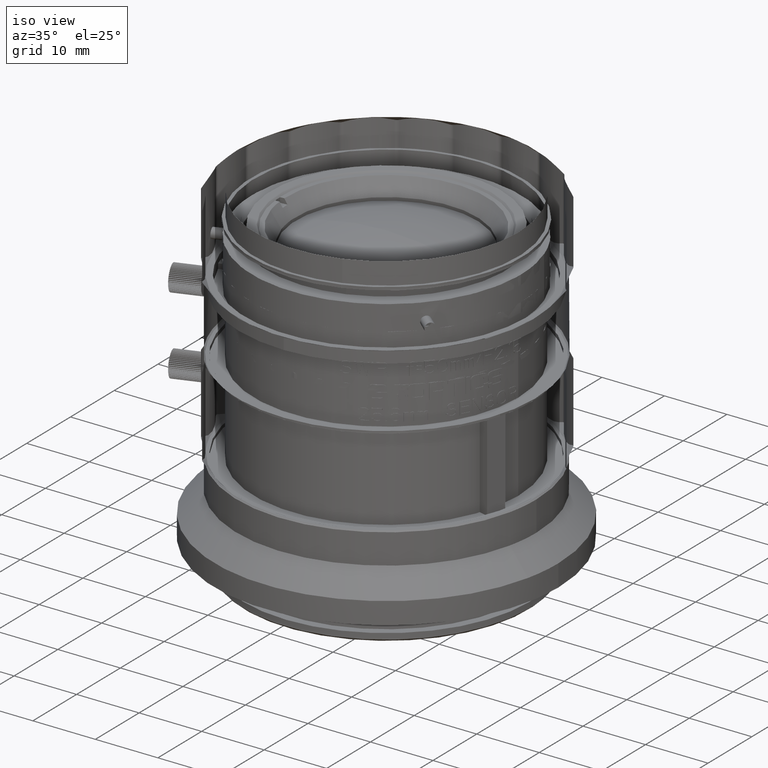
[diagram: clean part render]
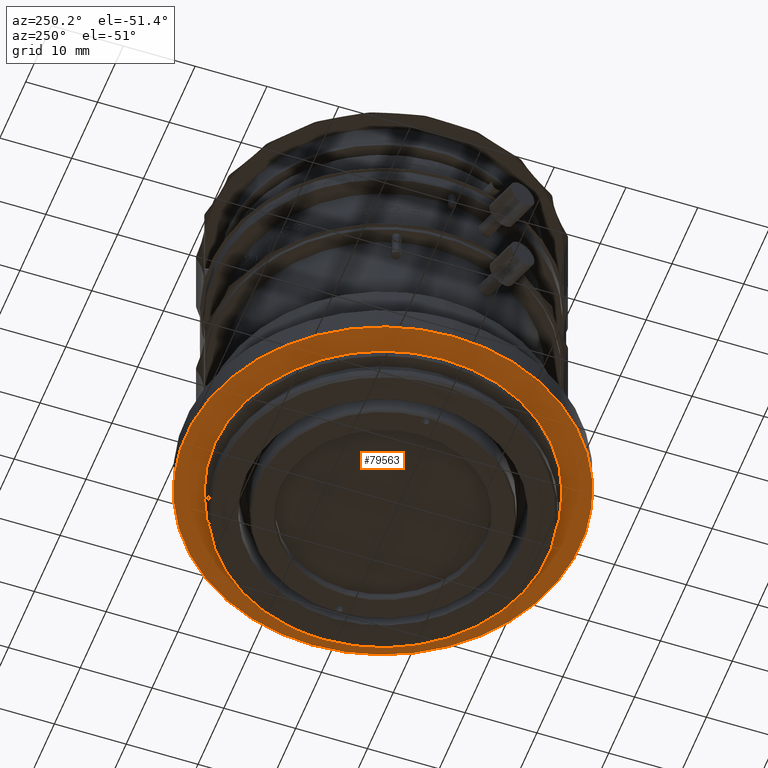
[diagram: tour spotlight — one face highlighted and labeled with its STEP entity id]
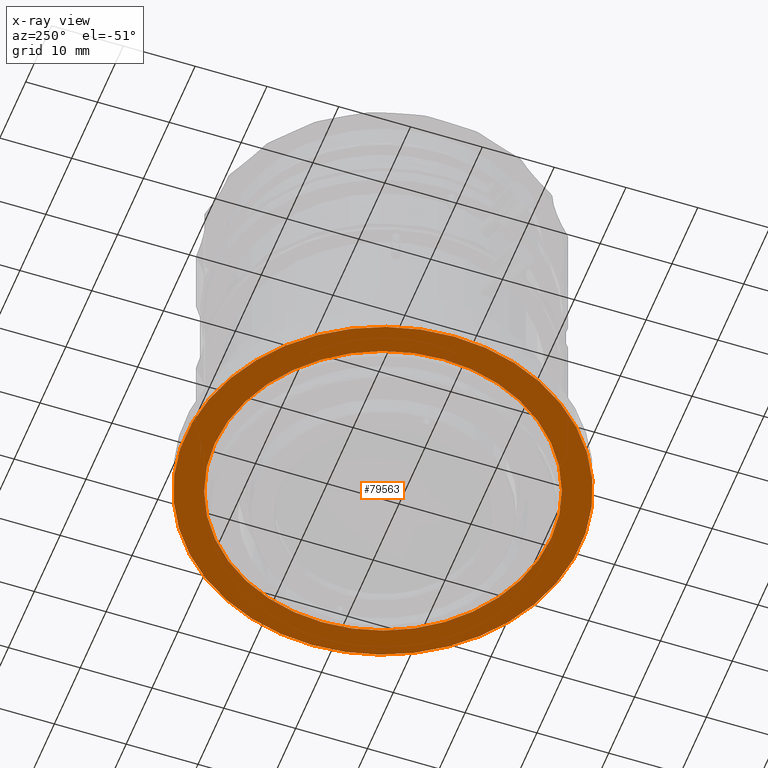
[diagram: x-ray of the same camera — body ghosted, this tour face saturated]
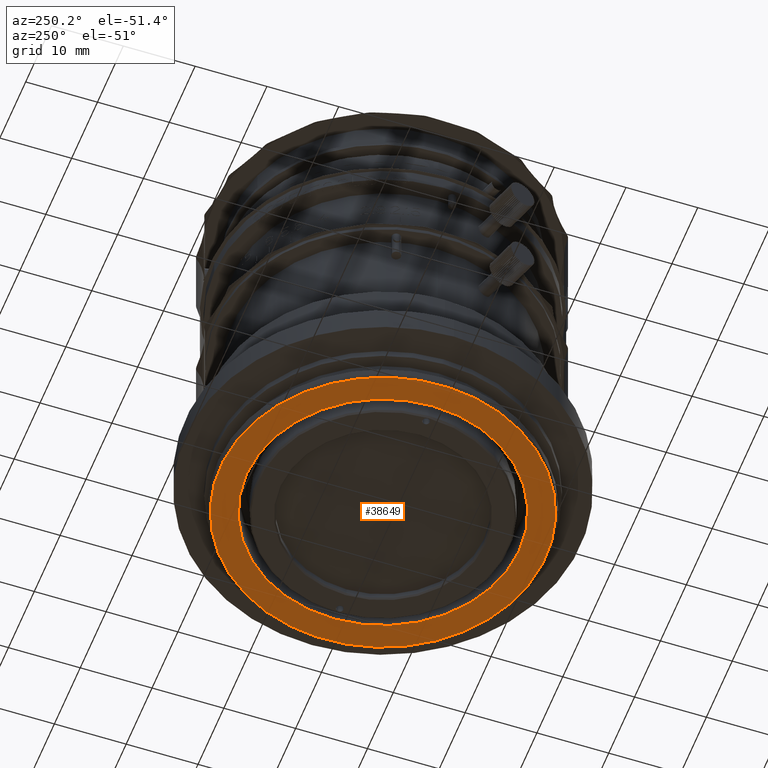
[diagram: tour spotlight — one face highlighted and labeled with its STEP entity id]
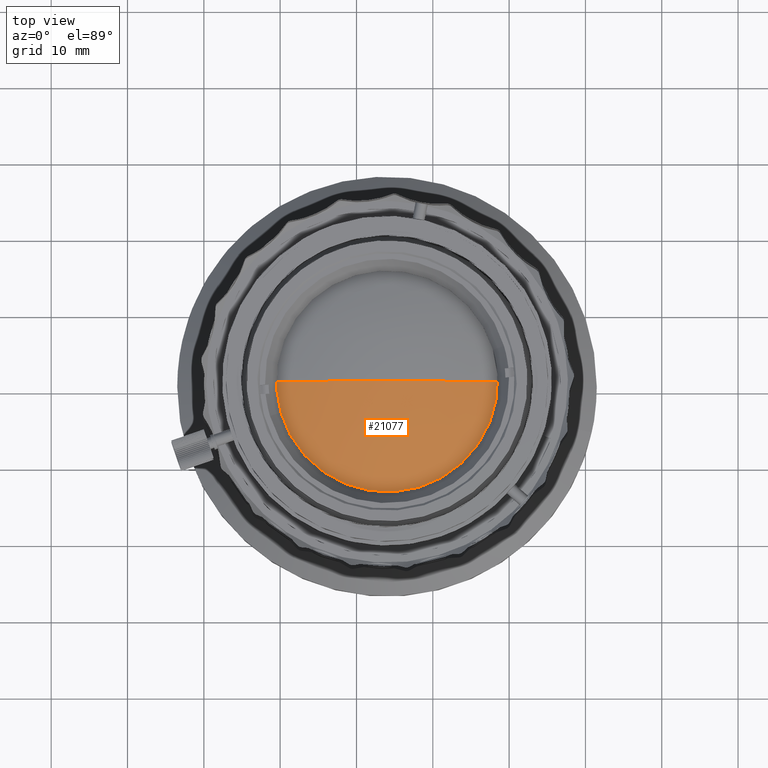
[diagram: tour spotlight — one face highlighted and labeled with its STEP entity id]
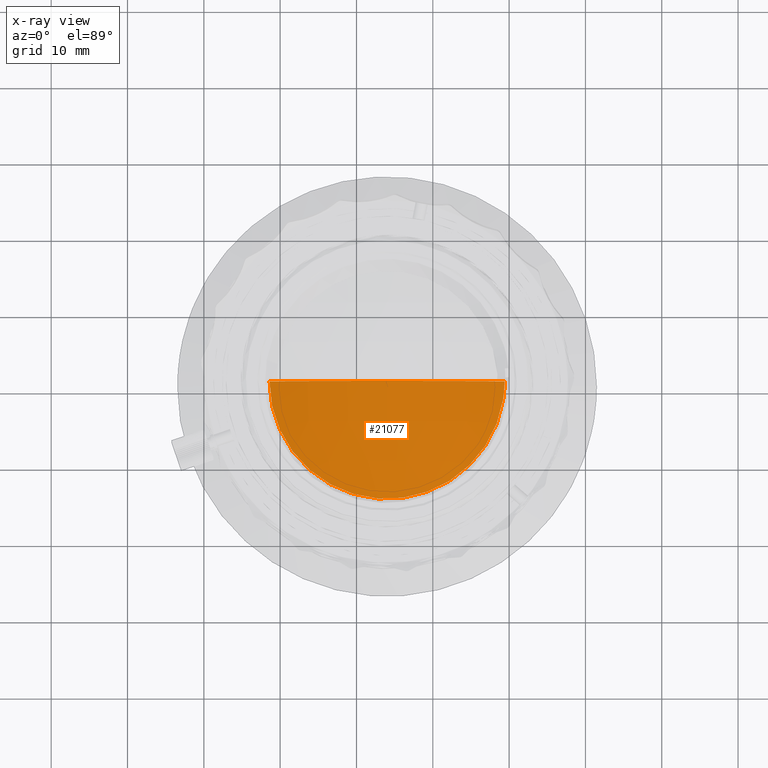
[diagram: x-ray of the same camera — body ghosted, this tour face saturated]
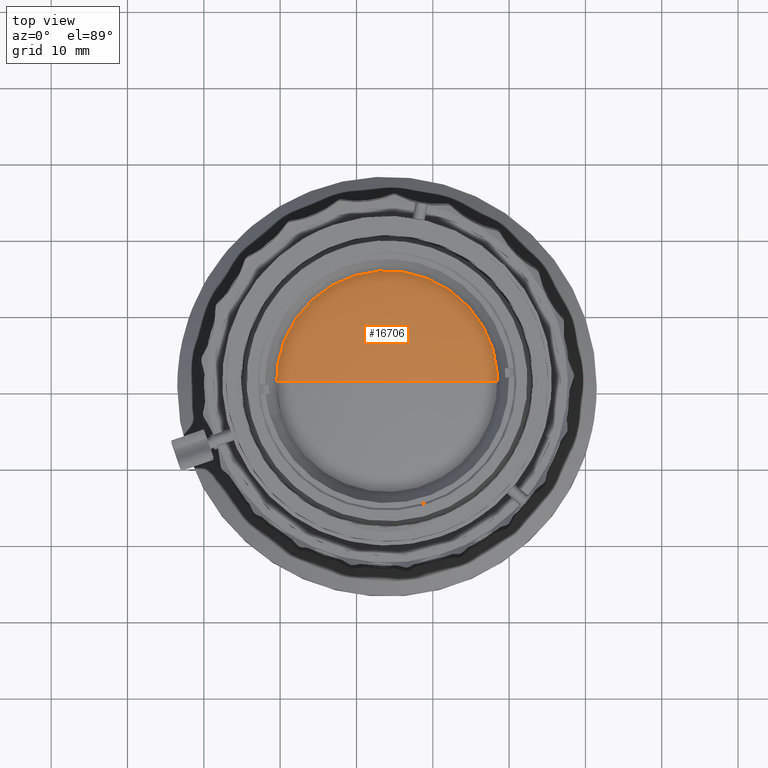
[diagram: tour spotlight — one face highlighted and labeled with its STEP entity id]
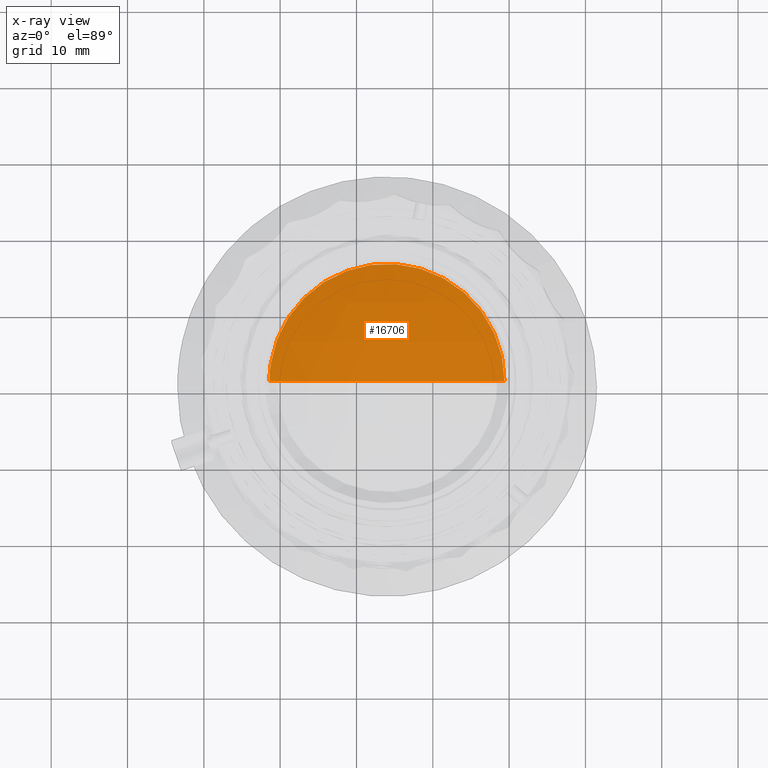
[diagram: x-ray of the same camera — body ghosted, this tour face saturated]
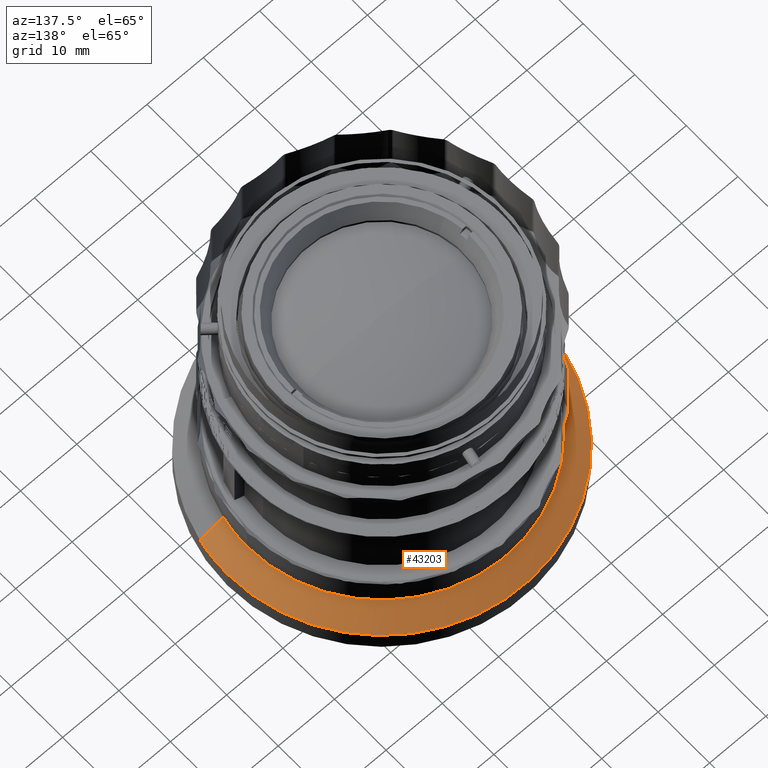
[diagram: tour spotlight — one face highlighted and labeled with its STEP entity id]
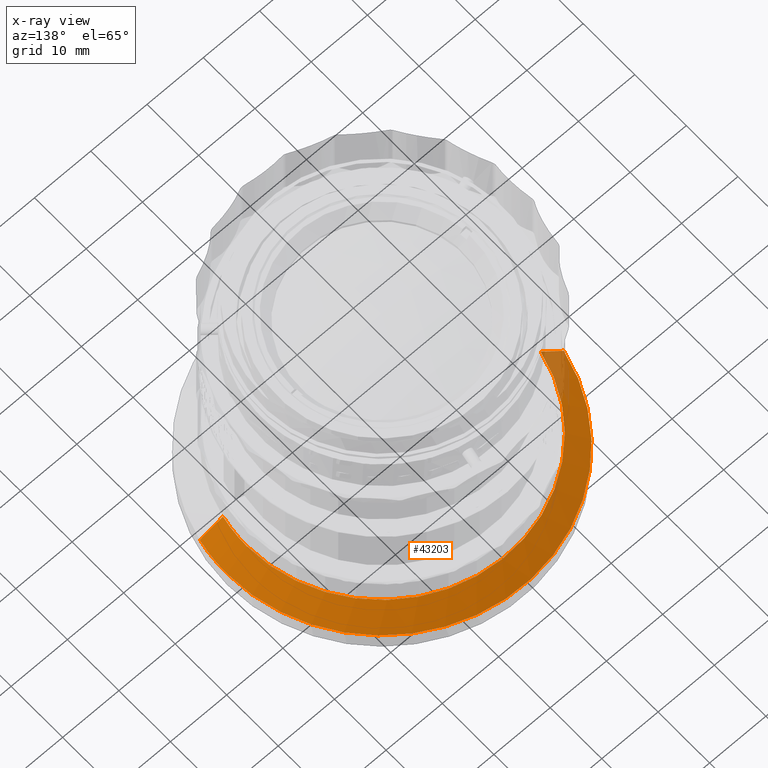
[diagram: x-ray of the same camera — body ghosted, this tour face saturated]
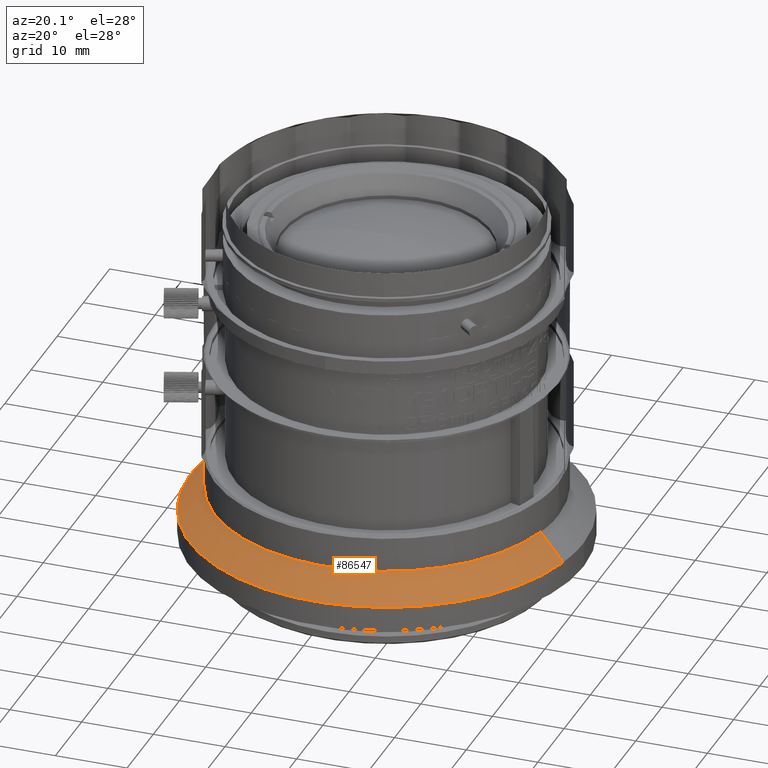
[diagram: tour spotlight — one face highlighted and labeled with its STEP entity id]
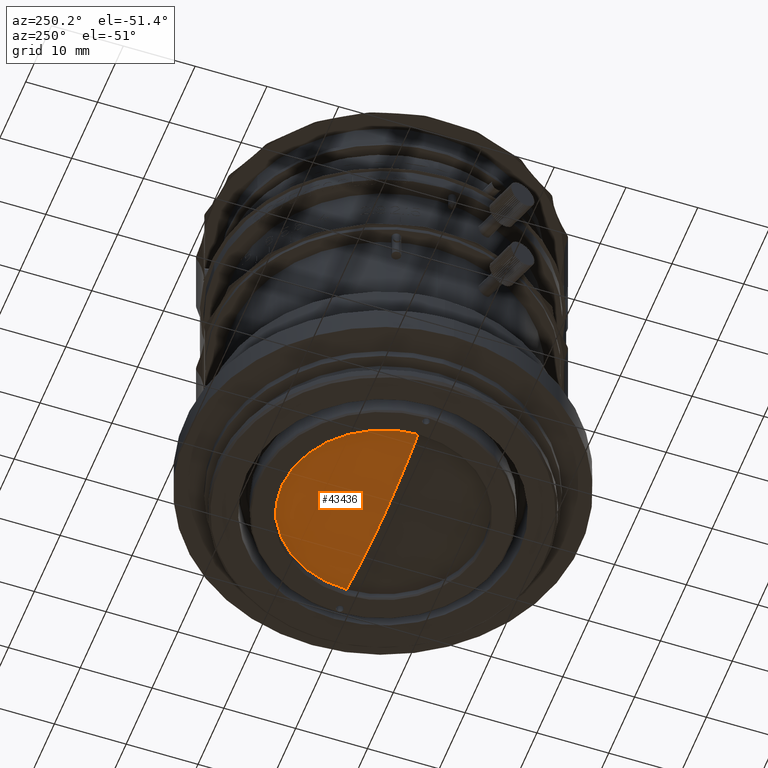
[diagram: tour spotlight — one face highlighted and labeled with its STEP entity id]
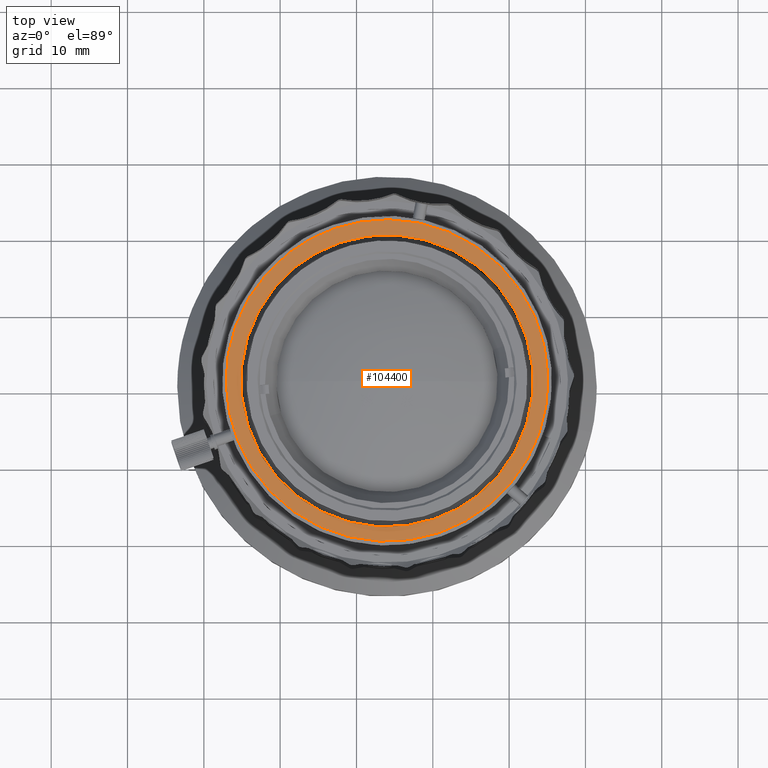
[diagram: tour spotlight — one face highlighted and labeled with its STEP entity id]
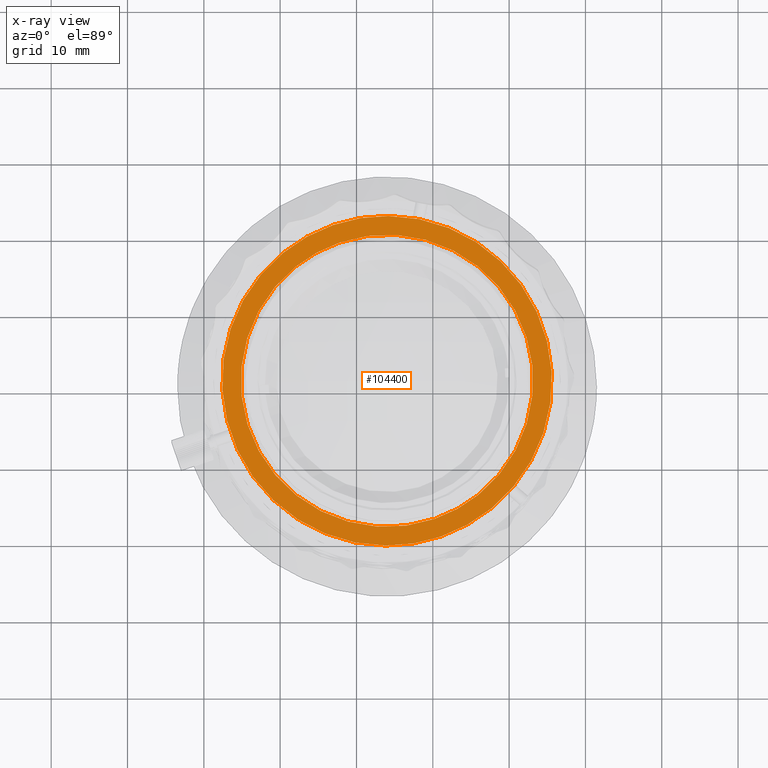
[diagram: x-ray of the same camera — body ghosted, this tour face saturated]
A machine part: a face-by-face anatomy tour. The part has 2630 B-rep faces; the first image is the clean iso view, then the 8 largest visible faces are spotlighted one at a time (largest first), each with its STEP entity span.

Face 1 — auxiliary view, entity #79563. An x-ray twin of the same camera follows (body ghosted, this face saturated) — the face is partly hidden behind the body. In plain terms, the highlighted planar face has unit normal (0, 0, 1).
Definition (entity closure, byte-faithful):
#5520 = DIRECTION ( 'NONE',  ( -1.000000000000000000, -5.803089394875964387E-14, 0.000000000000000000 ) ) ;
#7013 = DIRECTION ( 'NONE',  ( 1.000000000000000000, 2.201365456643623660E-13, 0.000000000000000000 ) ) ;
#11894 = CARTESIAN_POINT ( 'NONE',  ( 51.48619255813999729, 150.7964473440000006, -37.75599999999909784 ) ) ;
#13514 = DIRECTION ( 'NONE',  ( -4.475316629661279960E-28, 7.769033965384319644E-15, -1.000000000000000000 ) ) ;
#13991 = AXIS2_PLACEMENT_3D ( 'NONE', #53148, #70713, #52619 ) ;
#14342 = ORIENTED_EDGE ( 'NONE', *, *, #19328, .F. ) ;
#14514 = VERTEX_POINT ( 'NONE', #102521 ) ;
#15008 = CARTESIAN_POINT ( 'NONE',  ( 23.99999999549069685, 150.7964473439980111, -37.75599999999909784 ) ) ;
#17265 = VERTEX_POINT ( 'NONE', #61457 ) ;
#19328 = EDGE_CURVE ( 'NONE', #17265, #42813, #57764, .T. ) ;
#22472 = ORIENTED_EDGE ( 'NONE', *, *, #38018, .F. ) ;
#23138 = EDGE_LOOP ( 'NONE', ( #22472, #14342 ) ) ;
#24577 = DIRECTION ( 'NONE',  ( -1.851522468867120022E-27, 8.401541559299790651E-15, 1.000000000000000000 ) ) ;
#28995 = ORIENTED_EDGE ( 'NONE', *, *, #48640, .F. ) ;
#36128 = AXIS2_PLACEMENT_3D ( 'NONE', #15008, #24577, #7013 ) ;
#38018 = EDGE_CURVE ( 'NONE', #42813, #17265, #76647, .T. ) ;
#38935 = CARTESIAN_POINT ( 'NONE',  ( 0.5638074328412969738, 150.7964473439966469, -37.75600000000079604 ) ) ;
#41282 = CIRCLE ( 'NONE', #36128, 27.48619256264929334 ) ;
#42813 = VERTEX_POINT ( 'NONE', #38935 ) ;
#46211 = FACE_OUTER_BOUND ( 'NONE', #81180, .T. ) ;
#47114 = DIRECTION ( 'NONE',  ( -1.000000000000000000, -5.803089394875964387E-14, 0.000000000000000000 ) ) ;
#48640 = EDGE_CURVE ( 'NONE', #70653, #14514, #41282, .T. ) ;
#50627 = ORIENTED_EDGE ( 'NONE', *, *, #61121, .F. ) ;
#52619 = DIRECTION ( 'NONE',  ( 1.000000000000000000, 0.000000000000000000, 0.000000000000000000 ) ) ;
#53148 = CARTESIAN_POINT ( 'NONE',  ( 23.99999999549199714, 179.4016366602000119, -37.75600000000000023 ) ) ;
#57764 = CIRCLE ( 'NONE', #96859, 23.43619256264939921 ) ;
#61121 = EDGE_CURVE ( 'NONE', #14514, #70653, #76925, .T. ) ;
#61457 = CARTESIAN_POINT ( 'NONE',  ( 47.43619255814009961, 150.7964473440000006, -37.75600000000079604 ) ) ;
#62990 = DIRECTION ( 'NONE',  ( 1.000000000000000000, 2.201365456643623660E-13, 0.000000000000000000 ) ) ;
#64580 = DIRECTION ( 'NONE',  ( -1.851522468867120022E-27, 8.401541559299790651E-15, 1.000000000000000000 ) ) ;
#66472 = AXIS2_PLACEMENT_3D ( 'NONE', #69416, #13514, #5520 ) ;
#69416 = CARTESIAN_POINT ( 'NONE',  ( 23.99999999549069685, 150.7964473439980111, -37.75600000000079604 ) ) ;
#70653 = VERTEX_POINT ( 'NONE', #11894 ) ;
#70713 = DIRECTION ( 'NONE',  ( 0.000000000000000000, 0.000000000000000000, 1.000000000000000000 ) ) ;
#72666 = DIRECTION ( 'NONE',  ( -4.475316629661279960E-28, 7.769033965384319644E-15, -1.000000000000000000 ) ) ;
#76647 = CIRCLE ( 'NONE', #66472, 23.43619256264939921 ) ;
#76925 = CIRCLE ( 'NONE', #90564, 27.48619256264929334 ) ;
#79563 = ADVANCED_FACE ( 'NONE', ( #46211, #94712 ), #95227, .F. ) ;
#81180 = EDGE_LOOP ( 'NONE', ( #50627, #28995 ) ) ;
#88575 = CARTESIAN_POINT ( 'NONE',  ( 23.99999999549069685, 150.7964473439980111, -37.75599999999909784 ) ) ;
#90564 = AXIS2_PLACEMENT_3D ( 'NONE', #88575, #64580, #62990 ) ;
#93492 = CARTESIAN_POINT ( 'NONE',  ( 23.99999999549069685, 150.7964473439980111, -37.75600000000079604 ) ) ;
#94712 = FACE_BOUND ( 'NONE', #23138, .T. ) ;
#95227 = PLANE ( 'NONE',  #13991 ) ;
#96859 = AXIS2_PLACEMENT_3D ( 'NONE', #93492, #72666, #47114 ) ;
#102521 = CARTESIAN_POINT ( 'NONE',  ( -3.486192567158600486, 150.7964473440000006, -37.75599999999909784 ) ) ;

Face 2 — auxiliary view, entity #38649. In plain terms, the highlighted planar face has unit normal (0, 0, 1).
Definition (entity closure, byte-faithful):
#795 = FACE_OUTER_BOUND ( 'NONE', #32059, .T. ) ;
#1269 = ORIENTED_EDGE ( 'NONE', *, *, #16982, .F. ) ;
#6970 = VERTEX_POINT ( 'NONE', #88792 ) ;
#9143 = CARTESIAN_POINT ( 'NONE',  ( 23.99999999548990104, 150.7964473440000006, -42.25600000000000023 ) ) ;
#10458 = ORIENTED_EDGE ( 'NONE', *, *, #61931, .F. ) ;
#11765 = EDGE_CURVE ( 'NONE', #27142, #66102, #69697, .T. ) ;
#16076 = ORIENTED_EDGE ( 'NONE', *, *, #11765, .T. ) ;
#16982 = EDGE_CURVE ( 'NONE', #62081, #6970, #78530, .T. ) ;
#25808 = PLANE ( 'NONE',  #40968 ) ;
#27142 = VERTEX_POINT ( 'NONE', #103002 ) ;
#27329 = CIRCLE ( 'NONE', #91961, 22.63681860694489245 ) ;
#32059 = EDGE_LOOP ( 'NONE', ( #55750, #16076 ) ) ;
#32327 = AXIS2_PLACEMENT_3D ( 'NONE', #9143, #42653, #41639 ) ;
#38348 = EDGE_CURVE ( 'NONE', #66102, #27142, #27329, .T. ) ;
#38649 = ADVANCED_FACE ( 'NONE', ( #795, #83300 ), #25808, .F. ) ;
#40968 = AXIS2_PLACEMENT_3D ( 'NONE', #82273, #90792, #89752 ) ;
#41639 = DIRECTION ( 'NONE',  ( -0.9756097560975602878, -0.2195121951219544121, 5.211032451805432966E-15 ) ) ;
#42653 = DIRECTION ( 'NONE',  ( -4.941882492476229741E-15, -1.111923560807168080E-15, -1.000000000000000000 ) ) ;
#44508 = AXIS2_PLACEMENT_3D ( 'NONE', #101244, #93279, #60759 ) ;
#50152 = CARTESIAN_POINT ( 'NONE',  ( 1.915298915543598657, 145.8273896010120154, -42.25599999999988654 ) ) ;
#55750 = ORIENTED_EDGE ( 'NONE', *, *, #38348, .T. ) ;
#60387 = DIRECTION ( 'NONE',  ( 1.000000000000000000, 1.666545627692776171E-13, 0.000000000000000000 ) ) ;
#60759 = DIRECTION ( 'NONE',  ( 1.000000000000000000, 1.666545627692776171E-13, 0.000000000000000000 ) ) ;
#61931 = EDGE_CURVE ( 'NONE', #6970, #62081, #92313, .T. ) ;
#62081 = VERTEX_POINT ( 'NONE', #96582 ) ;
#63257 = CARTESIAN_POINT ( 'NONE',  ( 23.99999999548990104, 150.7964473440000006, -42.25600000000000023 ) ) ;
#66102 = VERTEX_POINT ( 'NONE', #50152 ) ;
#68373 = DIRECTION ( 'NONE',  ( 0.000000000000000000, 0.000000000000000000, -1.000000000000000000 ) ) ;
#69697 = CIRCLE ( 'NONE', #32327, 22.63681860694489245 ) ;
#73587 = AXIS2_PLACEMENT_3D ( 'NONE', #83333, #68373, #60387 ) ;
#78530 = CIRCLE ( 'NONE', #44508, 18.98619256264969835 ) ;
#82273 = CARTESIAN_POINT ( 'NONE',  ( 23.99999999549099883, 174.3387258308000014, -42.25600000000000023 ) ) ;
#83300 = FACE_BOUND ( 'NONE', #105355, .T. ) ;
#83333 = CARTESIAN_POINT ( 'NONE',  ( 23.99999999549029894, 150.7964473439990059, -42.25600000000000023 ) ) ;
#88792 = CARTESIAN_POINT ( 'NONE',  ( 42.98619255813999729, 150.7964473440021607, -42.25600000000000023 ) ) ;
#89752 = DIRECTION ( 'NONE',  ( 1.000000000000000000, 0.000000000000000000, 0.000000000000000000 ) ) ;
#90792 = DIRECTION ( 'NONE',  ( 0.000000000000000000, 0.000000000000000000, 1.000000000000000000 ) ) ;
#91961 = AXIS2_PLACEMENT_3D ( 'NONE', #63257, #104819, #96313 ) ;
#92313 = CIRCLE ( 'NONE', #73587, 18.98619256264969835 ) ;
#93279 = DIRECTION ( 'NONE',  ( 0.000000000000000000, 0.000000000000000000, -1.000000000000000000 ) ) ;
#96313 = DIRECTION ( 'NONE',  ( -0.9756097560975602878, -0.2195121951219544121, 5.211032451805432966E-15 ) ) ;
#96582 = CARTESIAN_POINT ( 'NONE',  ( 5.013807432840598821, 150.7964473440000006, -42.25600000000000023 ) ) ;
#101244 = CARTESIAN_POINT ( 'NONE',  ( 23.99999999549029894, 150.7964473439990059, -42.25600000000000023 ) ) ;
#103002 = CARTESIAN_POINT ( 'NONE',  ( 46.08470107543620742, 155.7655050869879574, -42.25600000000012102 ) ) ;
#104819 = DIRECTION ( 'NONE',  ( -4.941882492476229741E-15, -1.111923560807168080E-15, -1.000000000000000000 ) ) ;
#105355 = EDGE_LOOP ( 'NONE', ( #10458, #1269 ) ) ;

Face 3 — top view, entity #21077. An x-ray twin of the same camera follows (body ghosted, this face saturated) — the face is partly hidden behind the body. In plain terms, the highlighted spherical surface has radius 43.945 mm.
Definition (entity closure, byte-faithful):
#151 = DIRECTION ( 'NONE',  ( 8.560931487065979640E-14, -1.245774472169431979E-12, -1.000000000000000000 ) ) ;
#649 = DIRECTION ( 'NONE',  ( 1.000000000000000000, 0.000000000000000000, 6.315980342616660369E-16 ) ) ;
#2360 = CARTESIAN_POINT ( 'NONE',  ( 23.99999999549000052, 150.7964473440000006, -37.39000000000000057 ) ) ;
#5559 = CIRCLE ( 'NONE', #7238, 43.94499999999999318 ) ;
#6898 = CARTESIAN_POINT ( 'NONE',  ( 23.99999999548997565, 150.7964473439999722, 6.554999999999997939 ) ) ;
#6998 = EDGE_LOOP ( 'NONE', ( #101930, #59782, #47806, #67259 ) ) ;
#7238 = AXIS2_PLACEMENT_3D ( 'NONE', #2360, #12442, #44902 ) ;
#9719 = DIRECTION ( 'NONE',  ( 0.9976471278657408348, 0.06855806488837123958, 0.000000000000000000 ) ) ;
#12442 = DIRECTION ( 'NONE',  ( 4.182938242338841642E-31, -1.000000000000000000, -6.467563870839499677E-16 ) ) ;
#12721 = AXIS2_PLACEMENT_3D ( 'NONE', #40440, #31362, #23919 ) ;
#13647 = EDGE_CURVE ( 'NONE', #19769, #17949, #5559, .T. ) ;
#16861 = EDGE_CURVE ( 'NONE', #19769, #89963, #24188, .T. ) ;
#17949 = VERTEX_POINT ( 'NONE', #6898 ) ;
#19769 = VERTEX_POINT ( 'NONE', #44099 ) ;
#21077 = ADVANCED_FACE ( 'NONE', ( #65601 ), #63469, .T. ) ;
#23919 = DIRECTION ( 'NONE',  ( 0.9976471278657408348, 0.06855806488837123958, 0.000000000000000000 ) ) ;
#24188 = CIRCLE ( 'NONE', #83701, 15.39999999995030144 ) ;
#24422 = CARTESIAN_POINT ( 'NONE',  ( 39.22079947253461540, 148.4539565158981702, 3.768268002986561616 ) ) ;
#24784 = CARTESIAN_POINT ( 'NONE',  ( 8.599999995600153824, 150.7964473439999722, 3.768268002981022491 ) ) ;
#27214 = CARTESIAN_POINT ( 'NONE',  ( 23.99999999549000052, 150.7964473440000006, -37.39000000000000057 ) ) ;
#31362 = DIRECTION ( 'NONE',  ( 8.560931487065979640E-14, -1.245774472169431979E-12, -1.000000000000000000 ) ) ;
#39000 = CARTESIAN_POINT ( 'NONE',  ( 23.99999999549000052, 150.7964473440000006, -37.39000000000000057 ) ) ;
#40440 = CARTESIAN_POINT ( 'NONE',  ( 23.99999999549140028, 150.7964473439789970, 3.768268002982340104 ) ) ;
#44099 = CARTESIAN_POINT ( 'NONE',  ( 39.39999999537772624, 150.7964473439999722, 3.768268002983659493 ) ) ;
#44902 = DIRECTION ( 'NONE',  ( 0.000000000000000000, 6.315980342616661355E-16, -1.000000000000000000 ) ) ;
#45896 = AXIS2_PLACEMENT_3D ( 'NONE', #39000, #56567, #649 ) ;
#47806 = ORIENTED_EDGE ( 'NONE', *, *, #16861, .F. ) ;
#50165 = CARTESIAN_POINT ( 'NONE',  ( 23.99999999549140028, 150.7964473439789970, 3.768268002982340104 ) ) ;
#56567 = DIRECTION ( 'NONE',  ( -4.084900627284000218E-31, 1.000000000000000000, 6.467563870839499677E-16 ) ) ;
#59670 = DIRECTION ( 'NONE',  ( 1.224646799147349016E-16, 1.000000000000000000, 6.467563870839500663E-16 ) ) ;
#59745 = VERTEX_POINT ( 'NONE', #24784 ) ;
#59782 = ORIENTED_EDGE ( 'NONE', *, *, #90957, .F. ) ;
#62037 = CIRCLE ( 'NONE', #12721, 15.39999999995030144 ) ;
#63469 = SPHERICAL_SURFACE ( 'NONE', #45896, 43.94500000000000028 ) ;
#65601 = FACE_OUTER_BOUND ( 'NONE', #6998, .T. ) ;
#67259 = ORIENTED_EDGE ( 'NONE', *, *, #13647, .T. ) ;
#78743 = AXIS2_PLACEMENT_3D ( 'NONE', #27214, #59670, #92195 ) ;
#82205 = CIRCLE ( 'NONE', #78743, 43.94500000000000028 ) ;
#82935 = EDGE_CURVE ( 'NONE', #59745, #17949, #82205, .T. ) ;
#83701 = AXIS2_PLACEMENT_3D ( 'NONE', #50165, #151, #9719 ) ;
#89963 = VERTEX_POINT ( 'NONE', #24422 ) ;
#90957 = EDGE_CURVE ( 'NONE', #89963, #59745, #62037, .T. ) ;
#92195 = DIRECTION ( 'NONE',  ( 0.000000000000000000, -6.315980342616660369E-16, 1.000000000000000000 ) ) ;
#101930 = ORIENTED_EDGE ( 'NONE', *, *, #82935, .F. ) ;

Face 4 — top view, entity #16706. An x-ray twin of the same camera follows (body ghosted, this face saturated) — the face is partly hidden behind the body. In plain terms, the highlighted spherical surface has radius 43.945 mm.
Definition (entity closure, byte-faithful):
#2360 = CARTESIAN_POINT ( 'NONE',  ( 23.99999999549000052, 150.7964473440000006, -37.39000000000000057 ) ) ;
#5559 = CIRCLE ( 'NONE', #7238, 43.94499999999999318 ) ;
#6898 = CARTESIAN_POINT ( 'NONE',  ( 23.99999999548997565, 150.7964473439999722, 6.554999999999997939 ) ) ;
#7238 = AXIS2_PLACEMENT_3D ( 'NONE', #2360, #12442, #44902 ) ;
#10241 = ORIENTED_EDGE ( 'NONE', *, *, #82935, .T. ) ;
#12442 = DIRECTION ( 'NONE',  ( 4.182938242338841642E-31, -1.000000000000000000, -6.467563870839499677E-16 ) ) ;
#13647 = EDGE_CURVE ( 'NONE', #19769, #17949, #5559, .T. ) ;
#16706 = ADVANCED_FACE ( 'NONE', ( #59834 ), #26865, .T. ) ;
#17505 = ORIENTED_EDGE ( 'NONE', *, *, #79119, .F. ) ;
#17949 = VERTEX_POINT ( 'NONE', #6898 ) ;
#19252 = AXIS2_PLACEMENT_3D ( 'NONE', #23318, #91442, #82922 ) ;
#19769 = VERTEX_POINT ( 'NONE', #44099 ) ;
#23197 = VERTEX_POINT ( 'NONE', #80491 ) ;
#23318 = CARTESIAN_POINT ( 'NONE',  ( 23.99999999549140028, 150.7964473439789970, 3.768268002982340104 ) ) ;
#24784 = CARTESIAN_POINT ( 'NONE',  ( 8.599999995600153824, 150.7964473439999722, 3.768268002981022491 ) ) ;
#26865 = SPHERICAL_SURFACE ( 'NONE', #70059, 43.94500000000000028 ) ;
#27214 = CARTESIAN_POINT ( 'NONE',  ( 23.99999999549000052, 150.7964473440000006, -37.39000000000000057 ) ) ;
#27898 = DIRECTION ( 'NONE',  ( 1.000000000000000000, 0.000000000000000000, 6.315980342616660369E-16 ) ) ;
#36615 = CARTESIAN_POINT ( 'NONE',  ( 23.99999999549140028, 150.7964473439789970, 3.768268002982340104 ) ) ;
#38771 = AXIS2_PLACEMENT_3D ( 'NONE', #36615, #100534, #52051 ) ;
#44099 = CARTESIAN_POINT ( 'NONE',  ( 39.39999999537772624, 150.7964473439999722, 3.768268002983659493 ) ) ;
#44902 = DIRECTION ( 'NONE',  ( 0.000000000000000000, 6.315980342616661355E-16, -1.000000000000000000 ) ) ;
#45107 = EDGE_LOOP ( 'NONE', ( #73573, #10241, #50824, #17505 ) ) ;
#50824 = ORIENTED_EDGE ( 'NONE', *, *, #13647, .F. ) ;
#52051 = DIRECTION ( 'NONE',  ( 0.9976471278657408348, 0.06855806488837123958, 0.000000000000000000 ) ) ;
#59670 = DIRECTION ( 'NONE',  ( 1.224646799147349016E-16, 1.000000000000000000, 6.467563870839500663E-16 ) ) ;
#59745 = VERTEX_POINT ( 'NONE', #24784 ) ;
#59834 = FACE_OUTER_BOUND ( 'NONE', #45107, .T. ) ;
#65154 = CIRCLE ( 'NONE', #19252, 15.39999999995030144 ) ;
#70059 = AXIS2_PLACEMENT_3D ( 'NONE', #101379, #83842, #27898 ) ;
#73573 = ORIENTED_EDGE ( 'NONE', *, *, #103149, .F. ) ;
#76183 = CIRCLE ( 'NONE', #38771, 15.39999999995030144 ) ;
#78743 = AXIS2_PLACEMENT_3D ( 'NONE', #27214, #59670, #92195 ) ;
#79119 = EDGE_CURVE ( 'NONE', #23197, #19769, #65154, .T. ) ;
#80491 = CARTESIAN_POINT ( 'NONE',  ( 8.779200518436512723, 153.1389381721012910, 3.768268002978118592 ) ) ;
#82205 = CIRCLE ( 'NONE', #78743, 43.94500000000000028 ) ;
#82922 = DIRECTION ( 'NONE',  ( 0.9976471278657408348, 0.06855806488837123958, 0.000000000000000000 ) ) ;
#82935 = EDGE_CURVE ( 'NONE', #59745, #17949, #82205, .T. ) ;
#83842 = DIRECTION ( 'NONE',  ( -4.084900627284000218E-31, 1.000000000000000000, 6.467563870839499677E-16 ) ) ;
#91442 = DIRECTION ( 'NONE',  ( 8.560931487065979640E-14, -1.245774472169431979E-12, -1.000000000000000000 ) ) ;
#92195 = DIRECTION ( 'NONE',  ( 0.000000000000000000, -6.315980342616660369E-16, 1.000000000000000000 ) ) ;
#100534 = DIRECTION ( 'NONE',  ( 8.560931487065979640E-14, -1.245774472169431979E-12, -1.000000000000000000 ) ) ;
#101379 = CARTESIAN_POINT ( 'NONE',  ( 23.99999999549000052, 150.7964473440000006, -37.39000000000000057 ) ) ;
#103149 = EDGE_CURVE ( 'NONE', #59745, #23197, #76183, .T. ) ;

Face 5 — auxiliary view, entity #43203. An x-ray twin of the same camera follows (body ghosted, this face saturated) — the face is partly hidden behind the body. In plain terms, the highlighted conical surface has half-angle 45 deg.
Definition (entity closure, byte-faithful):
#100 = DIRECTION ( 'NONE',  ( -7.596337672573920211E-28, 1.567210637023240043E-14, 1.000000000000000000 ) ) ;
#948 = CIRCLE ( 'NONE', #2615, 23.98619256265000388 ) ;
#2269 = DIRECTION ( 'NONE',  ( 1.000000000000000000, 5.091451358517521077E-14, 0.000000000000000000 ) ) ;
#2615 = AXIS2_PLACEMENT_3D ( 'NONE', #29358, #84792, #20356 ) ;
#8156 = CARTESIAN_POINT ( 'NONE',  ( 23.99999999549000052, 150.7964473439990059, -34.25600000000050471 ) ) ;
#9217 = CARTESIAN_POINT ( 'NONE',  ( 23.99999999549000052, 150.7964473439990059, -30.75599999999009881 ) ) ;
#10247 = DIRECTION ( 'NONE',  ( -1.040685677727561967E-28, 2.036580543406900089E-15, 1.000000000000000000 ) ) ;
#11601 = EDGE_CURVE ( 'NONE', #79025, #37940, #102021, .T. ) ;
#16688 = VERTEX_POINT ( 'NONE', #36404 ) ;
#17202 = CARTESIAN_POINT ( 'NONE',  ( 47.74262688588024162, 145.4543562936621868, -31.10599999999110921 ) ) ;
#20356 = DIRECTION ( 'NONE',  ( 1.000000000000000000, 5.091451358517521077E-14, 0.000000000000000000 ) ) ;
#21014 = VERTEX_POINT ( 'NONE', #102384 ) ;
#21067 = VECTOR ( 'NONE', #57130, 1000.000000000000114 ) ;
#22517 = CIRCLE ( 'NONE', #95638, 27.48619256265000033 ) ;
#22725 = CARTESIAN_POINT ( 'NONE',  ( 47.40116347124603635, 145.5311855619548851, -30.75599999999008816 ) ) ;
#29358 = CARTESIAN_POINT ( 'NONE',  ( 23.99999999549000052, 150.7964473439990059, -30.75599999999009881 ) ) ;
#30968 = CARTESIAN_POINT ( 'NONE',  ( 23.99999999549000052, 150.7964473439990059, -34.25600000000050471 ) ) ;
#36404 = CARTESIAN_POINT ( 'NONE',  ( 47.98619255814000439, 150.7964473440000006, -30.75599999999009881 ) ) ;
#36697 = DIRECTION ( 'NONE',  ( 0.9756097560975609539, -0.2195121951219514700, -4.276897805219973902E-16 ) ) ;
#37940 = VERTEX_POINT ( 'NONE', #100348 ) ;
#42313 = ORIENTED_EDGE ( 'NONE', *, *, #92688, .F. ) ;
#43203 = ADVANCED_FACE ( 'NONE', ( #101671 ), #59051, .T. ) ;
#47018 = DIRECTION ( 'NONE',  ( 1.000000000000000000, 4.847043207288588062E-14, 0.000000000000000000 ) ) ;
#47290 = LINE ( 'NONE', #87787, #54617 ) ;
#51455 = EDGE_CURVE ( 'NONE', #53328, #21014, #99190, .T. ) ;
#53328 = VERTEX_POINT ( 'NONE', #22725 ) ;
#54150 = EDGE_CURVE ( 'NONE', #69860, #37940, #47290, .T. ) ;
#54540 = ORIENTED_EDGE ( 'NONE', *, *, #51455, .T. ) ;
#54617 = VECTOR ( 'NONE', #88316, 1000.000000000000000 ) ;
#57130 = DIRECTION ( 'NONE',  ( 0.6898602743273919424, -0.1552185617236628845, -0.7071067811875182407 ) ) ;
#59051 = CONICAL_SURFACE ( 'NONE', #77775, 24.33619256264999819, 0.7853981633960758213 ) ;
#60150 = EDGE_CURVE ( 'NONE', #21014, #79025, #22517, .T. ) ;
#63220 = CARTESIAN_POINT ( 'NONE',  ( 51.48619255813999729, 150.7964473440000006, -34.25600000000050471 ) ) ;
#63276 = DIRECTION ( 'NONE',  ( -1.873512634891329890E-16, 1.240539147305310109E-15, -1.000000000000000000 ) ) ;
#63989 = DIRECTION ( 'NONE',  ( 1.000000000000000000, 4.847043207288588062E-14, 0.000000000000000000 ) ) ;
#67298 = CIRCLE ( 'NONE', #97963, 23.98619256265000388 ) ;
#67360 = CARTESIAN_POINT ( 'NONE',  ( 0.5988365197339209356, 156.0617091260451161, -30.75599999999010947 ) ) ;
#69860 = VERTEX_POINT ( 'NONE', #67360 ) ;
#72568 = DIRECTION ( 'NONE',  ( -7.596337672573920211E-28, 1.567210637023240043E-14, 1.000000000000000000 ) ) ;
#73138 = AXIS2_PLACEMENT_3D ( 'NONE', #30968, #100, #63989 ) ;
#73699 = ORIENTED_EDGE ( 'NONE', *, *, #93394, .F. ) ;
#77775 = AXIS2_PLACEMENT_3D ( 'NONE', #87279, #63276, #36697 ) ;
#79025 = VERTEX_POINT ( 'NONE', #63220 ) ;
#80012 = ORIENTED_EDGE ( 'NONE', *, *, #11601, .T. ) ;
#84792 = DIRECTION ( 'NONE',  ( -1.040685677727561967E-28, 2.036580543406900089E-15, 1.000000000000000000 ) ) ;
#87279 = CARTESIAN_POINT ( 'NONE',  ( 23.99999999549000052, 150.7964473440000006, -31.10599999999109855 ) ) ;
#87322 = ORIENTED_EDGE ( 'NONE', *, *, #54150, .F. ) ;
#87787 = CARTESIAN_POINT ( 'NONE',  ( 0.2573731050997569714, 156.1385383943378145, -31.10599999999108789 ) ) ;
#88316 = DIRECTION ( 'NONE',  ( -0.6898602743273922755, 0.1552185617236646054, -0.7071067811875176856 ) ) ;
#92688 = EDGE_CURVE ( 'NONE', #16688, #69860, #948, .T. ) ;
#93394 = EDGE_CURVE ( 'NONE', #53328, #16688, #67298, .T. ) ;
#95638 = AXIS2_PLACEMENT_3D ( 'NONE', #8156, #72568, #47018 ) ;
#96823 = ORIENTED_EDGE ( 'NONE', *, *, #60150, .T. ) ;
#97963 = AXIS2_PLACEMENT_3D ( 'NONE', #9217, #10247, #2269 ) ;
#99190 = LINE ( 'NONE', #17202, #21067 ) ;
#100348 = CARTESIAN_POINT ( 'NONE',  ( -2.815797626608402382, 156.8300018089721277, -34.25600000000059708 ) ) ;
#101671 = FACE_OUTER_BOUND ( 'NONE', #103168, .T. ) ;
#102021 = CIRCLE ( 'NONE', #73138, 27.48619256265000033 ) ;
#102384 = CARTESIAN_POINT ( 'NONE',  ( 50.81579761758818137, 144.7628928790279019, -34.25600000000040524 ) ) ;
#103168 = EDGE_LOOP ( 'NONE', ( #87322, #42313, #73699, #54540, #96823, #80012 ) ) ;

Face 6 — auxiliary view, entity #86547. In plain terms, the highlighted conical surface has half-angle 45 deg.
Definition (entity closure, byte-faithful):
#829 = ORIENTED_EDGE ( 'NONE', *, *, #73128, .F. ) ;
#2364 = DIRECTION ( 'NONE',  ( -1.040685677727561967E-28, 2.036580543406900089E-15, 1.000000000000000000 ) ) ;
#11650 = DIRECTION ( 'NONE',  ( 1.000000000000000000, 4.847043207288588062E-14, 0.000000000000000000 ) ) ;
#17202 = CARTESIAN_POINT ( 'NONE',  ( 47.74262688588024162, 145.4543562936621868, -31.10599999999110921 ) ) ;
#17406 = ORIENTED_EDGE ( 'NONE', *, *, #31760, .T. ) ;
#21014 = VERTEX_POINT ( 'NONE', #102384 ) ;
#21067 = VECTOR ( 'NONE', #57130, 1000.000000000000114 ) ;
#22532 = EDGE_CURVE ( 'NONE', #42762, #21014, #49893, .T. ) ;
#22725 = CARTESIAN_POINT ( 'NONE',  ( 47.40116347124603635, 145.5311855619548851, -30.75599999999008816 ) ) ;
#26065 = CARTESIAN_POINT ( 'NONE',  ( 23.99999999549000052, 150.7964473439990059, -34.25600000000050471 ) ) ;
#26854 = DIRECTION ( 'NONE',  ( 1.000000000000000000, 5.091451358517521077E-14, 0.000000000000000000 ) ) ;
#27950 = CARTESIAN_POINT ( 'NONE',  ( 0.01380743284000104931, 150.7964473440000006, -30.75599999999009881 ) ) ;
#28353 = DIRECTION ( 'NONE',  ( -1.873512634891329890E-16, 1.240539147305310109E-15, -1.000000000000000000 ) ) ;
#31237 = DIRECTION ( 'NONE',  ( 1.000000000000000000, 4.847043207288588062E-14, 0.000000000000000000 ) ) ;
#31760 = EDGE_CURVE ( 'NONE', #37940, #42762, #78929, .T. ) ;
#33017 = AXIS2_PLACEMENT_3D ( 'NONE', #95177, #70132, #31237 ) ;
#33526 = DIRECTION ( 'NONE',  ( -7.596337672573920211E-28, 1.567210637023240043E-14, 1.000000000000000000 ) ) ;
#33907 = CARTESIAN_POINT ( 'NONE',  ( 23.99999999549000052, 150.7964473439990059, -30.75599999999009881 ) ) ;
#35107 = CIRCLE ( 'NONE', #43563, 23.98619256265000388 ) ;
#37940 = VERTEX_POINT ( 'NONE', #100348 ) ;
#41630 = ORIENTED_EDGE ( 'NONE', *, *, #22532, .T. ) ;
#41927 = DIRECTION ( 'NONE',  ( -1.040685677727561967E-28, 2.036580543406900089E-15, 1.000000000000000000 ) ) ;
#42762 = VERTEX_POINT ( 'NONE', #70880 ) ;
#43563 = AXIS2_PLACEMENT_3D ( 'NONE', #50282, #2364, #26854 ) ;
#45763 = ORIENTED_EDGE ( 'NONE', *, *, #54150, .T. ) ;
#45890 = DIRECTION ( 'NONE',  ( 0.9756097560975609539, -0.2195121951219514700, -4.276897805219973902E-16 ) ) ;
#47290 = LINE ( 'NONE', #87787, #54617 ) ;
#49893 = CIRCLE ( 'NONE', #87382, 27.48619256265000033 ) ;
#50282 = CARTESIAN_POINT ( 'NONE',  ( 23.99999999549000052, 150.7964473439990059, -30.75599999999009881 ) ) ;
#51363 = AXIS2_PLACEMENT_3D ( 'NONE', #70391, #28353, #45890 ) ;
#51455 = EDGE_CURVE ( 'NONE', #53328, #21014, #99190, .T. ) ;
#53328 = VERTEX_POINT ( 'NONE', #22725 ) ;
#54150 = EDGE_CURVE ( 'NONE', #69860, #37940, #47290, .T. ) ;
#54617 = VECTOR ( 'NONE', #88316, 1000.000000000000000 ) ;
#57130 = DIRECTION ( 'NONE',  ( 0.6898602743273919424, -0.1552185617236628845, -0.7071067811875182407 ) ) ;
#58920 = DIRECTION ( 'NONE',  ( 1.000000000000000000, 5.091451358517521077E-14, 0.000000000000000000 ) ) ;
#66754 = CONICAL_SURFACE ( 'NONE', #51363, 24.33619256264999819, 0.7853981633960758213 ) ;
#67360 = CARTESIAN_POINT ( 'NONE',  ( 0.5988365197339209356, 156.0617091260451161, -30.75599999999010947 ) ) ;
#69340 = FACE_OUTER_BOUND ( 'NONE', #76802, .T. ) ;
#69860 = VERTEX_POINT ( 'NONE', #67360 ) ;
#70132 = DIRECTION ( 'NONE',  ( -7.596337672573920211E-28, 1.567210637023240043E-14, 1.000000000000000000 ) ) ;
#70391 = CARTESIAN_POINT ( 'NONE',  ( 23.99999999549000052, 150.7964473440000006, -31.10599999999109855 ) ) ;
#70880 = CARTESIAN_POINT ( 'NONE',  ( -3.486192567159998479, 150.7964473440000006, -34.25600000000050471 ) ) ;
#71682 = ORIENTED_EDGE ( 'NONE', *, *, #51455, .F. ) ;
#73128 = EDGE_CURVE ( 'NONE', #69860, #86213, #35107, .T. ) ;
#76802 = EDGE_LOOP ( 'NONE', ( #829, #45763, #17406, #41630, #71682, #97418 ) ) ;
#78929 = CIRCLE ( 'NONE', #33017, 27.48619256265000033 ) ;
#80384 = CIRCLE ( 'NONE', #92229, 23.98619256265000388 ) ;
#85490 = EDGE_CURVE ( 'NONE', #86213, #53328, #80384, .T. ) ;
#86213 = VERTEX_POINT ( 'NONE', #27950 ) ;
#86547 = ADVANCED_FACE ( 'NONE', ( #69340 ), #66754, .T. ) ;
#87382 = AXIS2_PLACEMENT_3D ( 'NONE', #26065, #33526, #11650 ) ;
#87787 = CARTESIAN_POINT ( 'NONE',  ( 0.2573731050997569714, 156.1385383943378145, -31.10599999999108789 ) ) ;
#88316 = DIRECTION ( 'NONE',  ( -0.6898602743273922755, 0.1552185617236646054, -0.7071067811875176856 ) ) ;
#92229 = AXIS2_PLACEMENT_3D ( 'NONE', #33907, #41927, #58920 ) ;
#95177 = CARTESIAN_POINT ( 'NONE',  ( 23.99999999549000052, 150.7964473439990059, -34.25600000000050471 ) ) ;
#97418 = ORIENTED_EDGE ( 'NONE', *, *, #85490, .F. ) ;
#99190 = LINE ( 'NONE', #17202, #21067 ) ;
#100348 = CARTESIAN_POINT ( 'NONE',  ( -2.815797626608402382, 156.8300018089721277, -34.25600000000059708 ) ) ;
#102384 = CARTESIAN_POINT ( 'NONE',  ( 50.81579761758818137, 144.7628928790279019, -34.25600000000040524 ) ) ;

Face 7 — auxiliary view, entity #43436. In plain terms, the highlighted spherical surface has radius 62.372 mm.
Definition (entity closure, byte-faithful):
#363 = EDGE_LOOP ( 'NONE', ( #68084, #36380, #66728 ) ) ;
#2239 = DIRECTION ( 'NONE',  ( 1.224646799147354193E-16, -1.000000000000000000, -9.113611694479569810E-16 ) ) ;
#7134 = AXIS2_PLACEMENT_3D ( 'NONE', #100207, #2239, #10754 ) ;
#10754 = DIRECTION ( 'NONE',  ( 0.000000000000000000, 8.900011420390211009E-16, -1.000000000000000000 ) ) ;
#14926 = AXIS2_PLACEMENT_3D ( 'NONE', #72077, #86520, #23641 ) ;
#21182 = DIRECTION ( 'NONE',  ( -1.038223976471938017E-31, 1.000000000000000000, 9.113611694479569810E-16 ) ) ;
#21524 = CARTESIAN_POINT ( 'NONE',  ( 38.09999999507000012, 150.7964473440000006, -41.83506897811729885 ) ) ;
#21933 = CARTESIAN_POINT ( 'NONE',  ( 9.899999995070000836, 150.7964473440000006, -41.83506897811722780 ) ) ;
#23093 = VERTEX_POINT ( 'NONE', #21933 ) ;
#23641 = DIRECTION ( 'NONE',  ( 1.000000000000000000, 0.000000000000000000, 1.112501427548776376E-16 ) ) ;
#25411 = CARTESIAN_POINT ( 'NONE',  ( 23.99999999536001738, 150.7964473440000575, -43.44971235358989503 ) ) ;
#27322 = DIRECTION ( 'NONE',  ( 1.000000000000000000, 0.000000000000000000, -2.460600675144406969E-15 ) ) ;
#31645 = CIRCLE ( 'NONE', #43579, 62.37199999999999989 ) ;
#36380 = ORIENTED_EDGE ( 'NONE', *, *, #91827, .F. ) ;
#39616 = SPHERICAL_SURFACE ( 'NONE', #14926, 62.37199999999999989 ) ;
#43436 = ADVANCED_FACE ( 'NONE', ( #80089 ), #39616, .T. ) ;
#43579 = AXIS2_PLACEMENT_3D ( 'NONE', #79179, #21182, #54666 ) ;
#45555 = EDGE_CURVE ( 'NONE', #23093, #71674, #85358, .T. ) ;
#48534 = AXIS2_PLACEMENT_3D ( 'NONE', #92833, #61355, #27322 ) ;
#54666 = DIRECTION ( 'NONE',  ( 0.000000000000000000, -8.900011420390211009E-16, 1.000000000000000000 ) ) ;
#61355 = DIRECTION ( 'NONE',  ( 2.512546206204318117E-15, 9.136531658924793510E-16, 1.000000000000000000 ) ) ;
#66728 = ORIENTED_EDGE ( 'NONE', *, *, #95294, .T. ) ;
#68084 = ORIENTED_EDGE ( 'NONE', *, *, #45555, .F. ) ;
#71674 = VERTEX_POINT ( 'NONE', #25411 ) ;
#72077 = CARTESIAN_POINT ( 'NONE',  ( 23.99999999535999962, 150.7964473440000006, 18.92228764641010130 ) ) ;
#79179 = CARTESIAN_POINT ( 'NONE',  ( 23.99999999535999962, 150.7964473440000006, 18.92228764641010130 ) ) ;
#80089 = FACE_OUTER_BOUND ( 'NONE', #363, .T. ) ;
#85358 = CIRCLE ( 'NONE', #7134, 62.37199999999999989 ) ;
#86520 = DIRECTION ( 'NONE',  ( 1.013890602023374238E-31, -1.000000000000000000, -9.113611694479569810E-16 ) ) ;
#91827 = EDGE_CURVE ( 'NONE', #99510, #23093, #94450, .T. ) ;
#92833 = CARTESIAN_POINT ( 'NONE',  ( 23.99999999506999870, 150.7964473440000006, -41.83506897811726333 ) ) ;
#94450 = CIRCLE ( 'NONE', #48534, 14.10000000000000142 ) ;
#95294 = EDGE_CURVE ( 'NONE', #99510, #71674, #31645, .T. ) ;
#99510 = VERTEX_POINT ( 'NONE', #21524 ) ;
#100207 = CARTESIAN_POINT ( 'NONE',  ( 23.99999999535999962, 150.7964473440000006, 18.92228764641010130 ) ) ;

Face 8 — top view, entity #104400. An x-ray twin of the same camera follows (body ghosted, this face saturated) — the face is partly hidden behind the body. In plain terms, the highlighted planar face has unit normal (0, 0, -1).
Definition (entity closure, byte-faithful):
#1431 = B_SPLINE_CURVE_WITH_KNOTS ( 'NONE', 3,
 ( #44724, #87328, #69222, #94797, #38320, #13317, #21848, #4276, #69745, #103288, #54301, #14376, #62279, #60709, #68689, #70805, #30323, #86799, #20266, #5315, #61219, #29813, #101188, #37265, #28240, #36744, #101718, #78805, #5849, #4798, #95312, #12802, #93224, #85231 ),
 .UNSPECIFIED., .F., .F.,
 ( 4, 2, 2, 2, 2, 2, 2, 2, 2, 2, 2, 2, 2, 2, 2, 2, 4 ),
 ( 0.000000000000000000, 0.06250000000000000000, 0.1250000000000000000, 0.1875000000000000000, 0.2500000000000000000, 0.3125000000000000000, 0.3750000000000000000, 0.4375000000000000000, 0.5000000000000000000, 0.5625000000000000000, 0.6250000000000000000, 0.6875000000000000000, 0.7500000000000000000, 0.8125000000000000000, 0.8750000000000000000, 0.9375000000000000000, 1.000000000000000000 ),
 .UNSPECIFIED. ) ;
#1584 = CARTESIAN_POINT ( 'NONE',  ( 11.89349975055905162, 168.7408638691220233, 7.889999999999999680 ) ) ;
#1636 = VERTEX_POINT ( 'NONE', #16749 ) ;
#2761 = CARTESIAN_POINT ( 'NONE',  ( 10.48800243360840057, 137.1685588564226634, 7.889999999999989022 ) ) ;
#3145 = CARTESIAN_POINT ( 'NONE',  ( 24.09661859910190174, 129.1502104283361234, 7.889999999999999680 ) ) ;
#3270 = CARTESIAN_POINT ( 'NONE',  ( 5.485263683169446125, 145.7468966682094162, 7.889999999999989022 ) ) ;
#4276 = CARTESIAN_POINT ( 'NONE',  ( 30.08768842012071332, 168.9962680130823003, 7.889999999999990798 ) ) ;
#4324 = CARTESIAN_POINT ( 'NONE',  ( 15.43542915081010669, 167.9703097222944166, 7.889999999999989022 ) ) ;
#4798 = CARTESIAN_POINT ( 'NONE',  ( 35.75045935456487456, 135.6234407997165192, 7.889999999999989022 ) ) ;
#4843 = CARTESIAN_POINT ( 'NONE',  ( 10.37211150791263314, 164.3084449058816290, 7.889999999999989022 ) ) ;
#5315 = CARTESIAN_POINT ( 'NONE',  ( 43.14409930853794606, 152.1369264502512522, 7.889999999999989022 ) ) ;
#5367 = CARTESIAN_POINT ( 'NONE',  ( 7.997907608468862506, 161.3901465080965068, 7.889999999999989022 ) ) ;
#5529 = CARTESIAN_POINT ( 'NONE',  ( 19.68226656079385251, 172.0079085325042740, 7.889999999999999680 ) ) ;
#5849 = CARTESIAN_POINT ( 'NONE',  ( 37.62788848306740874, 137.2844497821184291, 7.889999999999989022 ) ) ;
#6592 = CARTESIAN_POINT ( 'NONE',  ( 34.74324124658191693, 169.5888605628185530, 7.889999999999999680 ) ) ;
#7658 = CARTESIAN_POINT ( 'NONE',  ( 45.59394557401589765, 152.3042740970454076, 7.889999999999999680 ) ) ;
#9054 = CARTESIAN_POINT ( 'NONE',  ( 2.788538806992313379, 146.4787139092079258, 7.890000000000001457 ) ) ;
#9574 = CARTESIAN_POINT ( 'NONE',  ( 4.626815966642917388, 141.1397518558881643, 7.890000000000001457 ) ) ;
#9712 = CARTESIAN_POINT ( 'NONE',  ( 27.82431151874345332, 131.9903827871808630, 7.889999999999989022 ) ) ;
#10751 = CARTESIAN_POINT ( 'NONE',  ( 24.08194725492748844, 131.6056498777974184, 7.889999999999989022 ) ) ;
#11144 = CARTESIAN_POINT ( 'NONE',  ( 29.69144068044937512, 129.9115608176416572, 7.889999999999999680 ) ) ;
#11504 = FACE_OUTER_BOUND ( 'NONE', #20829, .T. ) ;
#12320 = CARTESIAN_POINT ( 'NONE',  ( 4.855900682442070959, 149.4559682377487206, 7.889999999999989022 ) ) ;
#12802 = CARTESIAN_POINT ( 'NONE',  ( 32.56457084016992809, 133.6225849657055846, 7.889999999999989022 ) ) ;
#12846 = CARTESIAN_POINT ( 'NONE',  ( 7.337532872370696957, 160.3177714175260462, 7.889999999999989022 ) ) ;
#13317 = CARTESIAN_POINT ( 'NONE',  ( 26.42010631908188145, 169.8342126573095072, 7.889999999999990798 ) ) ;
#13521 = CARTESIAN_POINT ( 'NONE',  ( 36.10650024039986050, 132.8520308188707588, 7.889999999999999680 ) ) ;
#14129 = DIRECTION ( 'NONE',  ( 0.000000000000000000, -1.000000000000000000, 0.000000000000000000 ) ) ;
#14376 = CARTESIAN_POINT ( 'NONE',  ( 36.58906057338571571, 165.2812316540341158, 7.889999999999990798 ) ) ;
#14587 = CARTESIAN_POINT ( 'NONE',  ( 35.94566944966067013, 168.8483139803613255, 7.889999999999999680 ) ) ;
#14694 = B_SPLINE_CURVE_WITH_KNOTS ( 'NONE', 3,
 ( #91711, #18749, #9712, #41679, #10751, #58150, #75699, #42191, #26213, #91197, #18240, #50673, #2761, #67702, #27236, #76222, #27760, #3270, #53289, #12320, #93273, #35730, #68213, #84750, #101238, #12846, #5367, #19799, #4843, #28798, #86337, #4324, #45813, #45311 ),
 .UNSPECIFIED., .F., .F.,
 ( 4, 2, 2, 2, 2, 2, 2, 2, 2, 2, 2, 2, 2, 2, 2, 2, 4 ),
 ( 0.000000000000000000, 0.06250000000000000000, 0.1250000000000000000, 0.1875000000000000000, 0.2500000000000000000, 0.3125000000000000000, 0.3750000000000000000, 0.4375000000000000000, 0.5000000000000000000, 0.5625000000000000000, 0.6250000000000000000, 0.6875000000000000000, 0.7500000000000000000, 0.8125000000000000000, 0.8750000000000000000, 0.9375000000000000000, 1.000000000000000000 ),
 .UNSPECIFIED. ) ;
#15114 = CARTESIAN_POINT ( 'NONE',  ( 43.96154089883776805, 159.1693675352125297, 7.889999999999999680 ) ) ;
#15637 = CARTESIAN_POINT ( 'NONE',  ( 44.52722465890948200, 143.9258524073628394, 7.889999999999999680 ) ) ;
#16749 = CARTESIAN_POINT ( 'NONE',  ( 17.76536983763269717, 168.9031280667010151, 7.889999999999999680 ) ) ;
#17464 = ORIENTED_EDGE ( 'NONE', *, *, #75531, .F. ) ;
#18240 = CARTESIAN_POINT ( 'NONE',  ( 13.40630083139355122, 134.7943549569788217, 7.889999999999989022 ) ) ;
#18749 = CARTESIAN_POINT ( 'NONE',  ( 29.04955067128059909, 132.2817110316794356, 7.889999999999987246 ) ) ;
#19658 = CARTESIAN_POINT ( 'NONE',  ( 3.115138433047980993, 145.1048232626161791, 7.889999999999999680 ) ) ;
#19799 = CARTESIAN_POINT ( 'NONE',  ( 9.515215685455943984, 163.3855079218957655, 7.889999999999989022 ) ) ;
#20266 = CARTESIAN_POINT ( 'NONE',  ( 42.80606455230915230, 154.6207588672534712, 7.889999999999989022 ) ) ;
#20829 = EDGE_LOOP ( 'NONE', ( #65560, #65297 ) ) ;
#21539 = CARTESIAN_POINT ( 'NONE',  ( 32.19439228561456900, 170.8319369252491811, 7.890000000000001457 ) ) ;
#21848 = CARTESIAN_POINT ( 'NONE',  ( 27.66356618709206572, 169.6344861352831401, 7.889999999999989022 ) ) ;
#22568 = CARTESIAN_POINT ( 'NONE',  ( 38.20303082469113320, 167.1318672170931734, 7.889999999999999680 ) ) ;
#23625 = CARTESIAN_POINT ( 'NONE',  ( 42.79241321427161182, 140.0532060928713349, 7.889999999999999680 ) ) ;
#25561 = CARTESIAN_POINT ( 'NONE',  ( 9.796969166332070600, 134.4610274708790314, 7.889999999999999680 ) ) ;
#26213 = CARTESIAN_POINT ( 'NONE',  ( 16.73170914703999301, 133.0351024938914577, 7.889999999999989022 ) ) ;
#26594 = CARTESIAN_POINT ( 'NONE',  ( 21.26608448401690765, 129.3232609679186567, 7.889999999999999680 ) ) ;
#27106 = CARTESIAN_POINT ( 'NONE',  ( 15.80560770541105242, 130.7609577627212047, 7.889999999999999680 ) ) ;
#27236 = CARTESIAN_POINT ( 'NONE',  ( 8.088962524510828089, 140.0664748678361207, 7.889999999999989022 ) ) ;
#27621 = CARTESIAN_POINT ( 'NONE',  ( 4.038459092131997608, 142.4235271528237661, 7.890000000000001457 ) ) ;
#27760 = CARTESIAN_POINT ( 'NONE',  ( 6.301374862410374256, 143.3767377040706208, 7.889999999999989022 ) ) ;
#28240 = CARTESIAN_POINT ( 'NONE',  ( 41.76134484559852922, 143.5281564955500073, 7.889999999999989022 ) ) ;
#28798 = CARTESIAN_POINT ( 'NONE',  ( 12.24954063641516022, 165.9694538882834252, 7.889999999999989022 ) ) ;
#29813 = CARTESIAN_POINT ( 'NONE',  ( 43.03776530879946449, 148.3763410204080628, 7.889999999999989022 ) ) ;
#30323 = CARTESIAN_POINT ( 'NONE',  ( 41.69862512856962411, 158.2161569839294373, 7.889999999999989022 ) ) ;
#31594 = CARTESIAN_POINT ( 'NONE',  ( 45.24915989308373554, 146.6682381182176300, 7.889999999999999680 ) ) ;
#33534 = CARTESIAN_POINT ( 'NONE',  ( 2.750840097919441618, 154.9246565698774702, 7.890000000000001457 ) ) ;
#34042 = CARTESIAN_POINT ( 'NONE',  ( 15.62654635469448294, 170.7578427504604974, 7.889999999999997904 ) ) ;
#35594 = CARTESIAN_POINT ( 'NONE',  ( 6.055490199598036583, 138.6901070237521196, 7.890000000000003233 ) ) ;
#35730 = CARTESIAN_POINT ( 'NONE',  ( 4.962234682180544532, 153.2165536675919384, 7.889999999999989022 ) ) ;
#36744 = CARTESIAN_POINT ( 'NONE',  ( 40.66246711860932095, 141.2751232704739550, 7.889999999999989022 ) ) ;
#36778 = EDGE_CURVE ( 'NONE', #85296, #1636, #14694, .T. ) ;
#37265 = CARTESIAN_POINT ( 'NONE',  ( 42.19982066457230729, 144.7087589193692168, 7.889999999999989022 ) ) ;
#37996 = CARTESIAN_POINT ( 'NONE',  ( 33.65653555893992888, 131.4231700443902469, 7.889999999999999680 ) ) ;
#38320 = CARTESIAN_POINT ( 'NONE',  ( 23.91805273605247706, 169.9872448102026112, 7.889999999999989022 ) ) ;
#39597 = CARTESIAN_POINT ( 'NONE',  ( 22.49217324233304893, 172.3903929225224090, 7.889999999999997904 ) ) ;
#41547 = CARTESIAN_POINT ( 'NONE',  ( 2.406054416960984099, 149.2886205909389332, 7.889999999999997904 ) ) ;
#41591 = VERTEX_POINT ( 'NONE', #61767 ) ;
#41679 = CARTESIAN_POINT ( 'NONE',  ( 25.34047910174129115, 131.6523480309520835, 7.889999999999989022 ) ) ;
#42052 = CARTESIAN_POINT ( 'NONE',  ( 8.625479415240269176, 166.0343285842764942, 7.889999999999999680 ) ) ;
#42191 = CARTESIAN_POINT ( 'NONE',  ( 17.91231157085924508, 132.5966266749177009, 7.889999999999990798 ) ) ;
#42564 = CARTESIAN_POINT ( 'NONE',  ( 3.472775332047405961, 157.6670422805420060, 7.889999999999997904 ) ) ;
#43270 = ORIENTED_EDGE ( 'NONE', *, *, #36778, .F. ) ;
#43376 = CARTESIAN_POINT ( 'NONE',  ( 16.96772785921000093, 171.2196485768999707, 7.889999999999999680 ) ) ;
#43610 = CARTESIAN_POINT ( 'NONE',  ( 8.762118755132846104, 135.4219267638786448, 7.889999999999997904 ) ) ;
#44724 = CARTESIAN_POINT ( 'NONE',  ( 17.76536983763269717, 168.9031280667010151, 7.889999999999999680 ) ) ;
#45311 = CARTESIAN_POINT ( 'NONE',  ( 17.76536983763269717, 168.9031280667010151, 7.889999999999999680 ) ) ;
#45813 = CARTESIAN_POINT ( 'NONE',  ( 16.58029035556065978, 168.4950724770796171, 7.889999999999989022 ) ) ;
#47568 = CARTESIAN_POINT ( 'NONE',  ( 42.05186663180553097, 138.8507778897809999, 7.889999999999999680 ) ) ;
#50673 = CARTESIAN_POINT ( 'NONE',  ( 11.41093941759424801, 136.3116630339659139, 7.889999999999990798 ) ) ;
#51052 = CARTESIAN_POINT ( 'NONE',  ( 14.34346443206118416, 170.1697246436170019, 7.890000000000001457 ) ) ;
#51573 = CARTESIAN_POINT ( 'NONE',  ( 25.50782674862592003, 129.2025017654832197, 7.889999999999999680 ) ) ;
#51949 = FACE_BOUND ( 'NONE', #91562, .T. ) ;
#53289 = CARTESIAN_POINT ( 'NONE',  ( 5.193935438670847837, 146.9721358207465869, 7.889999999999989022 ) ) ;
#53989 = CARTESIAN_POINT ( 'NONE',  ( 41.94450979136777846, 162.9027876642823571, 7.889999999999999680 ) ) ;
#54301 = CARTESIAN_POINT ( 'NONE',  ( 34.59369915958642139, 166.7985397310211795, 7.889999999999989022 ) ) ;
#55146 = CARTESIAN_POINT ( 'NONE',  ( 31.03227213177000010, 130.3732461111000021, 7.889999999999999680 ) ) ;
#55566 = CARTESIAN_POINT ( 'NONE',  ( 30.87059493197121895, 171.3236720074765174, 7.889999999999999680 ) ) ;
#56087 = CARTESIAN_POINT ( 'NONE',  ( 32.37345363630664252, 130.8350519375467229, 7.889999999999999680 ) ) ;
#56696 = B_SPLINE_CURVE_WITH_KNOTS ( 'NONE', 3,
 ( #100075, #11144, #83059, #51573, #3145, #26594, #91063, #92614, #27106, #59563, #84094, #25561, #43610, #83569, #35594, #9574, #27621, #19658, #9054, #41547, #98513, #73998, #33534, #42564, #66021, #58008, #90537, #82545, #42052, #74518, #1584, #51052, #34042, #59058 ),
 .UNSPECIFIED., .F., .F.,
 ( 4, 2, 2, 2, 2, 2, 2, 2, 2, 2, 2, 2, 2, 2, 2, 2, 4 ),
 ( 0.000000000000000000, 0.06250000000000001388, 0.1250000000000000278, 0.1875000000000000555, 0.2500000000000000555, 0.3125000000000000555, 0.3750000000000001110, 0.4375000000000000555, 0.5000000000000000000, 0.5625000000000000000, 0.6250000000000000000, 0.6875000000000000000, 0.7500000000000000000, 0.8125000000000001110, 0.8750000000000001110, 0.9375000000000001110, 1.000000000000000000 ),
 .UNSPECIFIED. ) ;
#58008 = CARTESIAN_POINT ( 'NONE',  ( 5.207586776637532999, 161.5396885950311514, 7.889999999999999680 ) ) ;
#58150 = CARTESIAN_POINT ( 'NONE',  ( 21.57989367189808050, 131.7586820306905224, 7.889999999999990798 ) ) ;
#59058 = CARTESIAN_POINT ( 'NONE',  ( 16.96772785921000093, 171.2196485768999707, 7.889999999999999680 ) ) ;
#59563 = CARTESIAN_POINT ( 'NONE',  ( 13.25675874435242640, 132.0040341252111489, 7.889999999999997904 ) ) ;
#60709 = CARTESIAN_POINT ( 'NONE',  ( 39.17300653977343217, 162.5469067030748818, 7.889999999999990798 ) ) ;
#61219 = CARTESIAN_POINT ( 'NONE',  ( 43.19079746169263956, 150.8783946034374992, 7.889999999999989022 ) ) ;
#61767 = CARTESIAN_POINT ( 'NONE',  ( 16.96772785921000093, 171.2196485768999707, 7.889999999999999680 ) ) ;
#62279 = CARTESIAN_POINT ( 'NONE',  ( 37.51199755737157204, 164.4243358315773946, 7.889999999999989022 ) ) ;
#63532 = CARTESIAN_POINT ( 'NONE',  ( 28.12820922142828550, 172.0456072415367146, 7.890000000000001457 ) ) ;
#64066 = CARTESIAN_POINT ( 'NONE',  ( 45.64623691118302418, 150.8930659478507437, 7.889999999999999680 ) ) ;
#65297 = ORIENTED_EDGE ( 'NONE', *, *, #93229, .T. ) ;
#65560 = ORIENTED_EDGE ( 'NONE', *, *, #79488, .T. ) ;
#66021 = CARTESIAN_POINT ( 'NONE',  ( 3.964510414274751593, 158.9908396341854200, 7.890000000000001457 ) ) ;
#67702 = CARTESIAN_POINT ( 'NONE',  ( 8.826993451206543995, 139.0459879849251763, 7.889999999999990798 ) ) ;
#68213 = CARTESIAN_POINT ( 'NONE',  ( 5.161961204206859222, 154.4600135356021156, 7.889999999999989022 ) ) ;
#68689 = CARTESIAN_POINT ( 'NONE',  ( 39.91103746646915340, 161.5264198201639374, 7.889999999999989022 ) ) ;
#69222 = CARTESIAN_POINT ( 'NONE',  ( 20.17568847223651929, 169.6025119008191382, 7.889999999999989022 ) ) ;
#69745 = CARTESIAN_POINT ( 'NONE',  ( 31.26829084393997604, 168.5577921941085435, 7.889999999999989022 ) ) ;
#70485 = CARTESIAN_POINT ( 'NONE',  ( 31.03227213177000010, 130.3732461111000021, 7.889999999999999680 ) ) ;
#70557 = PLANE ( 'NONE',  #94972 ) ;
#70805 = CARTESIAN_POINT ( 'NONE',  ( 41.17386237378441649, 159.3610181886799921, 7.889999999999990798 ) ) ;
#71078 = CARTESIAN_POINT ( 'NONE',  ( 2.759882511333500155, 143.4828883846500105, 7.889999999999999680 ) ) ;
#72060 = CARTESIAN_POINT ( 'NONE',  ( 44.03548957677608655, 142.6020550539122098, 7.889999999999999680 ) ) ;
#73998 = CARTESIAN_POINT ( 'NONE',  ( 2.526813619441257153, 153.5303628557321076, 7.889999999999997904 ) ) ;
#74518 = CARTESIAN_POINT ( 'NONE',  ( 10.74933449284447029, 167.9134532417206174, 7.889999999999999680 ) ) ;
#75531 = EDGE_CURVE ( 'NONE', #1636, #85296, #1431, .T. ) ;
#75699 = CARTESIAN_POINT ( 'NONE',  ( 20.33643380388789623, 131.9584085527168611, 7.889999999999989022 ) ) ;
#76222 = CARTESIAN_POINT ( 'NONE',  ( 6.826137617195557006, 142.2318764993200375, 7.889999999999990798 ) ) ;
#78482 = CARTESIAN_POINT ( 'NONE',  ( 37.25066549822610540, 133.6794414463371652, 7.889999999999999680 ) ) ;
#78805 = CARTESIAN_POINT ( 'NONE',  ( 38.48478430552409435, 138.2073867661042641, 7.889999999999989022 ) ) ;
#79488 = EDGE_CURVE ( 'NONE', #82600, #41591, #56696, .T. ) ;
#80612 = CARTESIAN_POINT ( 'NONE',  ( 26.73391550707216879, 172.2696337200703169, 7.889999999999999680 ) ) ;
#82545 = CARTESIAN_POINT ( 'NONE',  ( 7.664580122392616879, 164.9994781732117417, 7.889999999999999680 ) ) ;
#82600 = VERTEX_POINT ( 'NONE', #55146 ) ;
#83059 = CARTESIAN_POINT ( 'NONE',  ( 28.31773343020718414, 129.5849861554900713, 7.889999999999999680 ) ) ;
#83569 = CARTESIAN_POINT ( 'NONE',  ( 6.882994097849994830, 137.5457818412261020, 7.890000000000001457 ) ) ;
#84094 = CARTESIAN_POINT ( 'NONE',  ( 12.05433054127614945, 132.7445807076665574, 7.889999999999999680 ) ) ;
#84750 = CARTESIAN_POINT ( 'NONE',  ( 5.800179326407708835, 156.8841357686307560, 7.889999999999989022 ) ) ;
#85132 = CARTESIAN_POINT ( 'NONE',  ( 30.23463015335000037, 132.6897666213000093, 7.889999999999999680 ) ) ;
#85231 = CARTESIAN_POINT ( 'NONE',  ( 30.23463015335000037, 132.6897666213000093, 7.889999999999999680 ) ) ;
#85296 = VERTEX_POINT ( 'NONE', #85132 ) ;
#86337 = CARTESIAN_POINT ( 'NONE',  ( 13.27002751932610281, 166.7074848149791819, 7.889999999999989022 ) ) ;
#86501 = CARTESIAN_POINT ( 'NONE',  ( 45.47318637154217669, 148.0625318322880730, 7.889999999999999680 ) ) ;
#86799 = CARTESIAN_POINT ( 'NONE',  ( 42.51473630781054425, 155.8459980197906134, 7.889999999999989022 ) ) ;
#87328 = CARTESIAN_POINT ( 'NONE',  ( 18.95044931969936286, 169.3111836563205372, 7.889999999999987246 ) ) ;
#87540 = CARTESIAN_POINT ( 'NONE',  ( 41.11700589318346744, 164.0471128466924995, 7.889999999999999680 ) ) ;
#88080 = CARTESIAN_POINT ( 'NONE',  ( 43.37318402435124653, 160.4531428320773330, 7.889999999999999680 ) ) ;
#90263 = B_SPLINE_CURVE_WITH_KNOTS ( 'NONE', 3,
 ( #43376, #96581, #5529, #39597, #104016, #80612, #63532, #55566, #21539, #6592, #14587, #22568, #103492, #87540, #53989, #88080, #15114, #105098, #95522, #7658, #64066, #86501, #31594, #15637, #72060, #23625, #47568, #102980, #95000, #78482, #13521, #37996, #56087, #70485 ),
 .UNSPECIFIED., .F., .F.,
 ( 4, 2, 2, 2, 2, 2, 2, 2, 2, 2, 2, 2, 2, 2, 2, 2, 4 ),
 ( 0.000000000000000000, 0.06250000000000000000, 0.1250000000000000000, 0.1875000000000000000, 0.2500000000000000000, 0.3125000000000000000, 0.3750000000000000000, 0.4375000000000000000, 0.5000000000000000000, 0.5625000000000000000, 0.6250000000000000000, 0.6875000000000000000, 0.7500000000000000000, 0.8125000000000000000, 0.8750000000000000000, 0.9375000000000000000, 1.000000000000000000 ),
 .UNSPECIFIED. ) ;
#90537 = CARTESIAN_POINT ( 'NONE',  ( 5.948133359132954823, 162.7421167981600547, 7.890000000000001457 ) ) ;
#91063 = CARTESIAN_POINT ( 'NONE',  ( 19.87179076950611289, 129.5472874464929873, 7.890000000000001457 ) ) ;
#91197 = CARTESIAN_POINT ( 'NONE',  ( 14.47867592196397624, 134.1339802208807157, 7.889999999999990798 ) ) ;
#91562 = EDGE_LOOP ( 'NONE', ( #43270, #17464 ) ) ;
#91711 = CARTESIAN_POINT ( 'NONE',  ( 30.23463015335000037, 132.6897666213000093, 7.889999999999999680 ) ) ;
#92614 = CARTESIAN_POINT ( 'NONE',  ( 17.12940505905438826, 130.2692226804938116, 7.889999999999997904 ) ) ;
#93224 = CARTESIAN_POINT ( 'NONE',  ( 31.41970963541938033, 133.0978222109203557, 7.889999999999989022 ) ) ;
#93229 = EDGE_CURVE ( 'NONE', #41591, #82600, #90263, .T. ) ;
#93273 = CARTESIAN_POINT ( 'NONE',  ( 4.809202529287375683, 150.7145000845625304, 7.889999999999989022 ) ) ;
#94797 = CARTESIAN_POINT ( 'NONE',  ( 22.65952088923867080, 169.9405466570478609, 7.889999999999989022 ) ) ;
#94972 = AXIS2_PLACEMENT_3D ( 'NONE', #71078, #96137, #14129 ) ;
#95000 = CARTESIAN_POINT ( 'NONE',  ( 39.37452057564919983, 135.5585661036656120, 7.889999999999999680 ) ) ;
#95312 = CARTESIAN_POINT ( 'NONE',  ( 34.72997247165394441, 134.8854098730208477, 7.889999999999989022 ) ) ;
#95522 = CARTESIAN_POINT ( 'NONE',  ( 45.21146118399082070, 155.1141807788076790, 7.889999999999999680 ) ) ;
#96137 = DIRECTION ( 'NONE',  ( 0.000000000000000000, 0.000000000000000000, -1.000000000000000000 ) ) ;
#96581 = CARTESIAN_POINT ( 'NONE',  ( 18.30855931048966312, 171.6813338703442469, 7.889999999999999680 ) ) ;
#98513 = CARTESIAN_POINT ( 'NONE',  ( 2.353763079793515178, 150.6998287401290497, 7.890000000000001457 ) ) ;
#100075 = CARTESIAN_POINT ( 'NONE',  ( 31.03227213177000010, 130.3732461111000021, 7.889999999999999680 ) ) ;
#101188 = CARTESIAN_POINT ( 'NONE',  ( 42.83803878677315424, 147.1328811523979141, 7.889999999999989022 ) ) ;
#101238 = CARTESIAN_POINT ( 'NONE',  ( 6.238655145381495792, 158.0647381924500507, 7.889999999999989022 ) ) ;
#101718 = CARTESIAN_POINT ( 'NONE',  ( 40.00209238251117227, 140.2027481799035513, 7.889999999999989022 ) ) ;
#102980 = CARTESIAN_POINT ( 'NONE',  ( 40.33541986862886830, 136.5934165148471493, 7.889999999999999680 ) ) ;
#103288 = CARTESIAN_POINT ( 'NONE',  ( 33.52132406901598927, 167.4589144671193424, 7.889999999999990798 ) ) ;
#103492 = CARTESIAN_POINT ( 'NONE',  ( 39.23788123579373632, 166.1709679242027562, 7.889999999999999680 ) ) ;
#104016 = CARTESIAN_POINT ( 'NONE',  ( 23.90338139176902743, 172.4426842596748486, 7.890000000000001457 ) ) ;
#104400 = ADVANCED_FACE ( 'NONE', ( #51949, #11504 ), #70557, .T. ) ;
#105098 = CARTESIAN_POINT ( 'NONE',  ( 44.88486155794222299, 156.4880714253475276, 7.889999999999999680 ) ) ;